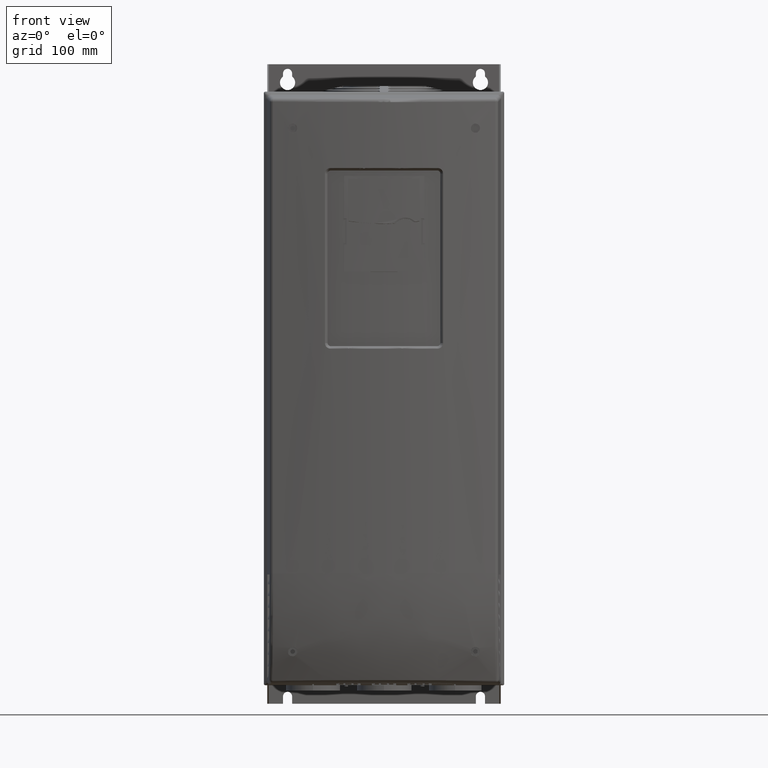
[diagram: clean part render]
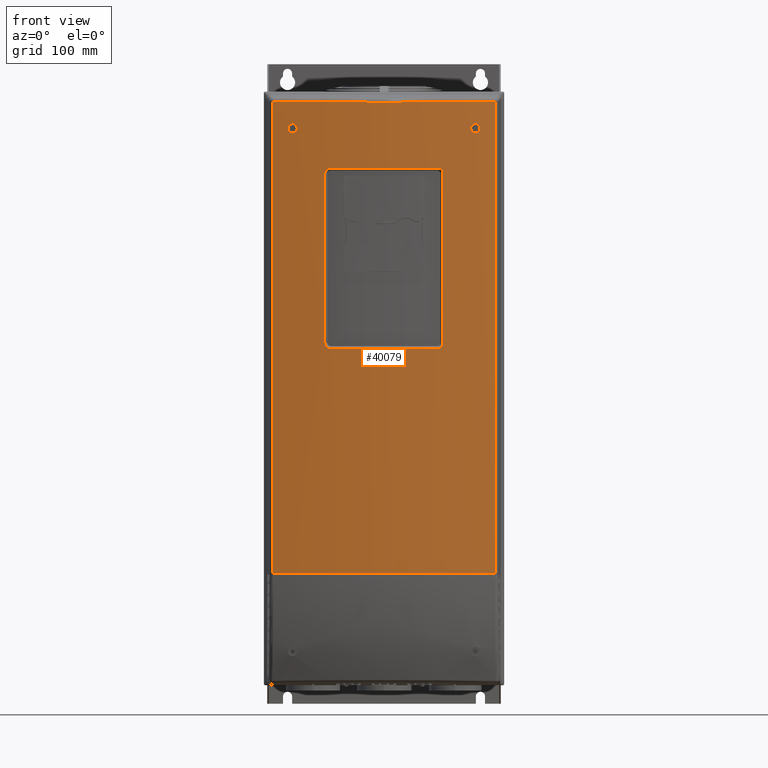
[diagram: same view with one face highlighted and labeled with its STEP entity id]
A machine part, front view. The second image highlights one B-rep face of the part: STEP entity #40079.
In plain terms, the highlighted cylindrical surface (partial cylindrical patch) has radius 603.413 mm, axis along (0, -0, 1).
Its self-contained STEP definition (entity closure, byte-faithful):
#4844=DIRECTION('',(-4.389992715973E-8,-8.793480433944E-6,9.999999999613E-1));
#4845=VECTOR('',#4844,4.647737114025E2);
#4846=CARTESIAN_POINT('',(1.092977528199E2,-2.473051317637E2,
-1.856935594504E2));
#4847=LINE('',#4846,#4845);
#4851=CARTESIAN_POINT('',(-1.092975210104E2,-2.473091599403E2,
2.790800603188E2));
#4852=CARTESIAN_POINT('',(-1.006284729163E2,-2.489058262606E2,
2.789968522384E2));
#4853=CARTESIAN_POINT('',(-8.322019850874E1,-2.517191221845E2,
2.788503518165E2));
#4854=CARTESIAN_POINT('',(-5.694815160586E1,-2.547912949518E2,
2.786902505499E2));
#4855=CARTESIAN_POINT('',(-3.936065229045E1,-2.560695588788E2,
2.786234123004E2));
#4856=CARTESIAN_POINT('',(-3.055716062256E1,-2.565159603670E2,
2.785939506061E2));
#4861=CARTESIAN_POINT('',(3.670140007806E1,-2.561730721327E2,2.786090163866E2));
#4862=CARTESIAN_POINT('',(4.481742642531E1,-2.556785302649E2,2.786436885499E2));
#4863=CARTESIAN_POINT('',(6.102955256126E1,-2.543617418444E2,2.787125647380E2));
#4864=CARTESIAN_POINT('',(8.524820874934E1,-2.514046412708E2,2.788666502539E2));
#4865=CARTESIAN_POINT('',(1.013010445099E2,-2.487820251941E2,2.790033901024E2));
#4866=CARTESIAN_POINT('',(1.092977324164E2,-2.473092187422E2,2.790801519341E2));
#4871=DIRECTION('',(7.418631215392E-8,9.303518604906E-6,-9.999999999567E-1));
#4872=VECTOR('',#4871,4.647736118861E2);
#4873=CARTESIAN_POINT('',(-1.092975210104E2,-2.473091599403E2,
2.790800603188E2));
#4874=LINE('',#4873,#4872);
#4903=CARTESIAN_POINT('',(8.848588079722E-4,3.461277636318E2,
-1.856874586016E2));
#4904=DIRECTION('',(3.971693170988E-7,-1.021186097279E-5,9.999999999478E-1));
#4905=DIRECTION('',(-6.417258386945E-10,-9.999999999479E-1,-1.021186097252E-5));
#4906=AXIS2_PLACEMENT_3D('',#4903,#4904,#4905);
#4920=CARTESIAN_POINT('',(8.848587906765E-4,3.461277636322E2,
-1.856875021490E2));
#4921=DIRECTION('',(3.971693170988E-7,-1.021186097279E-5,9.999999999478E-1));
#4922=DIRECTION('',(-1.811336002445E-1,-9.834584987497E-1,-9.971000753956E-6));
#4923=AXIS2_PLACEMENT_3D('',#4920,#4921,#4922);
#18087=CARTESIAN_POINT('',(3.670140007806E1,-2.561730721327E2,
2.786090163866E2));
#18088=CARTESIAN_POINT('',(3.343711093221E1,-2.563719722043E2,
2.785986906604E2));
#18089=CARTESIAN_POINT('',(2.690530638234E1,-2.567171417619E2,
2.785733863109E2));
#18090=CARTESIAN_POINT('',(1.710042222492E1,-2.570748951438E2,
2.785912465184E2));
#18091=CARTESIAN_POINT('',(1.056082033357E1,-2.572066185871E2,
2.785689246119E2));
#18092=CARTESIAN_POINT('',(7.290691352029E0,-2.572461276095E2,
2.785668734226E2));
#18097=CARTESIAN_POINT('',(1.069246435887E-3,3.461230227297E2,
2.785670040848E2));
#18098=DIRECTION('',(-3.971693170988E-7,1.021186097279E-5,-9.999999999478E-1));
#18099=DIRECTION('',(1.208064810482E-2,-9.999270262559E-1,-1.021591383833E-5));
#18100=AXIS2_PLACEMENT_3D('',#18097,#18098,#18099);
#18105=CARTESIAN_POINT('',(1.069246139473E-3,3.461230227374E2,
2.785662577674E2));
#18106=DIRECTION('',(-3.971693170988E-7,1.021186097279E-5,-9.999999999478E-1));
#18107=DIRECTION('',(2.955594290623E-3,-9.999956321695E-1,-1.021299024101E-5));
#18108=AXIS2_PLACEMENT_3D('',#18105,#18106,#18107);
#18113=CARTESIAN_POINT('',(1.069246133248E-3,3.461230227375E2,
2.785662420958E2));
#18114=DIRECTION('',(-3.971693170988E-7,1.021186097279E-5,-9.999999999478E-1));
#18115=DIRECTION('',(-6.339556613376E-11,-9.999999999479E-1,
-1.021186097280E-5));
#18116=AXIS2_PLACEMENT_3D('',#18113,#18114,#18115);
#18121=CARTESIAN_POINT('',(1.069246337228E-3,3.461230227323E2,
2.785667556786E2));
#18122=DIRECTION('',(-3.971693170988E-7,1.021186097279E-5,-9.999999999478E-1));
#18123=DIRECTION('',(-2.625675796500E-3,-9.999965528552E-1,-1.021078293365E-5));
#18124=AXIS2_PLACEMENT_3D('',#18121,#18122,#18123);
#18129=CARTESIAN_POINT('',(-6.012059037738E0,-2.572602096279E2,
2.785647563235E2));
#18130=CARTESIAN_POINT('',(-8.740606673955E0,-2.572330213517E2,
2.785661676336E2));
#18131=CARTESIAN_POINT('',(-1.419732583413E1,-2.571420681152E2,
2.785816353886E2));
#18132=CARTESIAN_POINT('',(-2.237979188634E1,-2.568939175025E2,
2.785692833654E2));
#18133=CARTESIAN_POINT('',(-2.783199290507E1,-2.566541377983E2,
2.785867774727E2));
#18134=CARTESIAN_POINT('',(-3.055716062256E1,-2.565159603670E2,
2.785939506061E2));
#20240=CARTESIAN_POINT('',(-8.550000951570E1,-2.512019472204E2,
2.527996934139E2));
#20241=CARTESIAN_POINT('',(-8.550000950824E1,-2.512019425277E2,
2.523374876782E2));
#20242=CARTESIAN_POINT('',(-8.564269065620E1,-2.511816037366E2,
2.514069904896E2));
#20243=CARTESIAN_POINT('',(-8.629065366590E1,-2.510884034599E2,
2.501212347959E2));
#20244=CARTESIAN_POINT('',(-8.730226270554E1,-2.509414547887E2,
2.491036545090E2));
#20245=CARTESIAN_POINT('',(-8.859266518613E1,-2.507520125536E2,
2.484460911163E2));
#20246=CARTESIAN_POINT('',(-8.953929263400E1,-2.506088958049E2,
2.482968399316E2));
#20247=CARTESIAN_POINT('',(-9.001253699779E1,-2.505375011064E2,
2.482981411789E2));
#20252=CARTESIAN_POINT('',(-9.001253699779E1,-2.505375011064E2,
2.482981411789E2));
#20253=CARTESIAN_POINT('',(-9.048335284553E1,-2.504664727792E2,
2.482994357487E2));
#20254=CARTESIAN_POINT('',(-9.142468091186E1,-2.503248278448E2,
2.484536777911E2));
#20255=CARTESIAN_POINT('',(-9.269733566365E1,-2.501276748404E2,
2.491039136461E2));
#20256=CARTESIAN_POINT('',(-9.371611144703E1,-2.499685849356E2,
2.501290383586E2));
#20257=CARTESIAN_POINT('',(-9.435979201305E1,-2.498653093591E2,
2.514159662906E2));
#20258=CARTESIAN_POINT('',(-9.449928364846E1,-2.498477190082E2,
2.523413487999E2));
#20259=CARTESIAN_POINT('',(-9.449928364846E1,-2.498477236599E2,
2.527996938326E2));
#20303=CARTESIAN_POINT('',(-9.449928364846E1,-2.498477236599E2,
2.527996938326E2));
#20304=CARTESIAN_POINT('',(-9.449928364846E1,-2.498477283548E2,
2.532622922977E2));
#20305=CARTESIAN_POINT('',(-9.435689680403E1,-2.498657672987E2,
2.541942893780E2));
#20306=CARTESIAN_POINT('',(-9.370852769071E1,-2.499698373109E2,
2.554812910659E2));
#20307=CARTESIAN_POINT('',(-9.268412868456E1,-2.501298601800E2,
2.565052168306E2));
#20308=CARTESIAN_POINT('',(-9.140960358678E1,-2.503269104706E2,
2.571507542819E2));
#20309=CARTESIAN_POINT('',(-9.046410788297E1,-2.504703015868E2,
2.573022758245E2));
#20310=CARTESIAN_POINT('',(-8.999090913020E1,-2.505416717641E2,
2.573013161094E2));
#20315=CARTESIAN_POINT('',(-8.999090913020E1,-2.505416717641E2,
2.573013161094E2));
#20316=CARTESIAN_POINT('',(-8.952261853191E1,-2.506123016693E2,
2.573003663487E2));
#20317=CARTESIAN_POINT('',(-8.858441097382E1,-2.507529545425E2,
2.571496506375E2));
#20318=CARTESIAN_POINT('',(-8.729926805230E1,-2.509420458269E2,
2.564932747827E2));
#20319=CARTESIAN_POINT('',(-8.628984721831E1,-2.510885769866E2,
2.554762696466E2));
#20320=CARTESIAN_POINT('',(-8.564397476502E1,-2.511814554840E2,
2.541955415647E2));
#20321=CARTESIAN_POINT('',(-8.550000952319E1,-2.512019519290E2,
2.532634741845E2));
#20322=CARTESIAN_POINT('',(-8.550000951570E1,-2.512019472204E2,
2.527996934139E2));
#20487=CARTESIAN_POINT('',(8.550025778987E1,-2.512025624851E2,
2.527996939753E2));
#20488=CARTESIAN_POINT('',(8.550025778987E1,-2.512025672466E2,
2.532633787030E2));
#20489=CARTESIAN_POINT('',(8.564404680980E1,-2.511815890839E2,
2.541973795104E2));
#20490=CARTESIAN_POINT('',(8.629425831353E1,-2.510882699504E2,
2.554856460002E2));
#20491=CARTESIAN_POINT('',(8.732214835898E1,-2.509389778943E2,
2.565100629594E2));
#20492=CARTESIAN_POINT('',(8.859967022499E1,-2.507510463438E2,
2.571539339836E2));
#20493=CARTESIAN_POINT('',(8.954660820951E1,-2.506090185295E2,
2.573034111348E2));
#20494=CARTESIAN_POINT('',(9.002028167277E1,-2.505375545871E2,
2.573012811944E2));
#20499=CARTESIAN_POINT('',(9.002028167277E1,-2.505375545871E2,
2.573012811944E2));
#20500=CARTESIAN_POINT('',(9.049061289459E1,-2.504665948945E2,
2.572991662829E2));
#20501=CARTESIAN_POINT('',(9.143053144312E1,-2.503240211928E2,
2.571435893312E2));
#20502=CARTESIAN_POINT('',(9.270106604527E1,-2.501275726964E2,
2.564925425428E2));
#20503=CARTESIAN_POINT('',(9.371781748851E1,-2.499686027855E2,
2.554677491578E2));
#20504=CARTESIAN_POINT('',(9.436015039964E1,-2.498661112876E2,
2.541815613297E2));
#20505=CARTESIAN_POINT('',(9.449945538890E1,-2.498467573993E2,
2.532573752532E2));
#20506=CARTESIAN_POINT('',(9.449945510542E1,-2.498467527416E2,
2.527996909298E2));
#20518=CARTESIAN_POINT('',(8.998361142605E1,-2.505424582071E2,
2.482981566304E2));
#20519=CARTESIAN_POINT('',(8.951316251695E1,-2.506134061365E2,
2.482998817953E2));
#20520=CARTESIAN_POINT('',(8.857293926786E1,-2.507551213406E2,
2.484546274891E2));
#20521=CARTESIAN_POINT('',(8.730164739859E1,-2.509418633394E2,
2.491047049911E2));
#20522=CARTESIAN_POINT('',(8.628302840476E1,-2.510898353390E2,
2.501302688724E2));
#20523=CARTESIAN_POINT('',(8.564052954591E1,-2.511820692101E2,
2.514160103070E2));
#20524=CARTESIAN_POINT('',(8.550025778987E1,-2.512025577781E2,
2.523413118035E2));
#20525=CARTESIAN_POINT('',(8.550025778987E1,-2.512025624851E2,
2.527996939753E2));
#20537=CARTESIAN_POINT('',(9.449945510542E1,-2.498467527416E2,
2.527996909298E2));
#20538=CARTESIAN_POINT('',(9.449945481873E1,-2.498467480311E2,
2.523368233212E2));
#20539=CARTESIAN_POINT('',(9.435671869484E1,-2.498666065798E2,
2.514041540481E2));
#20540=CARTESIAN_POINT('',(9.370688952198E1,-2.499702858771E2,
2.501155706460E2));
#20541=CARTESIAN_POINT('',(9.268127203188E1,-2.501305396324E2,
2.490919746094E2));
#20542=CARTESIAN_POINT('',(9.140435428280E1,-2.503281622929E2,
2.484466681841E2));
#20543=CARTESIAN_POINT('',(9.045738965808E1,-2.504710081858E2,
2.482964192566E2));
#20544=CARTESIAN_POINT('',(8.998361142605E1,-2.505424582071E2,
2.482981566304E2));
#20741=DIRECTION('',(-1.462406791985E-6,-8.748933102521E-6,9.999999999607E-1));
#20742=VECTOR('',#20741,1.670000008443E2);
#20743=CARTESIAN_POINT('',(-5.824098406566E1,-2.544708420957E2,
4.123718358108E1));
#20744=LINE('',#20743,#20742);
#20780=CARTESIAN_POINT('',(-5.824122828760E1,-2.544723031676E2,
2.082371844188E2));
#20781=CARTESIAN_POINT('',(-5.824170748290E1,-2.544722624745E2,
2.088049838379E2));
#20782=CARTESIAN_POINT('',(-5.807097050381E1,-2.544890176804E2,
2.098952949673E2));
#20783=CARTESIAN_POINT('',(-5.727046694691E1,-2.545660576913E2,
2.115132430385E2));
#20784=CARTESIAN_POINT('',(-5.602374627114E1,-2.546839446269E2,
2.127586364054E2));
#20785=CARTESIAN_POINT('',(-5.441318500435E1,-2.548321902383E2,
2.135596462999E2));
#20786=CARTESIAN_POINT('',(-5.330107762004E1,-2.549312064093E2,
2.137368339443E2));
#20787=CARTESIAN_POINT('',(-5.271829364144E1,-2.549823180310E2,
2.137371676796E2));
#20805=CARTESIAN_POINT('',(2.011350294686E-3,3.461644406132E2,
2.136939368535E2));
#20806=DIRECTION('',(3.119172881507E-6,7.186076741732E-5,9.999999974132E-1));
#20807=DIRECTION('',(-1.603742353780E-6,-9.999999974167E-1,7.186077241993E-5));
#20808=AXIS2_PLACEMENT_3D('',#20805,#20806,#20807);
#20826=CARTESIAN_POINT('',(2.011349785434E-3,3.461644406015E2,
2.136937735883E2));
#20827=DIRECTION('',(3.119172881507E-6,7.186076741732E-5,9.999999974132E-1));
#20828=DIRECTION('',(-8.736406903989E-2,-9.961764473612E-1,7.185850781127E-5));
#20829=AXIS2_PLACEMENT_3D('',#20826,#20827,#20828);
#20834=CARTESIAN_POINT('',(5.271817192700E1,-2.549825149701E2,
2.137370770600E2));
#20835=CARTESIAN_POINT('',(5.330627586916E1,-2.549309385E2,2.137327073567E2));
#20836=CARTESIAN_POINT('',(5.442449925086E1,-2.548313479086E2,
2.135565507133E2));
#20837=CARTESIAN_POINT('',(5.602786713812E1,-2.546837637581E2,
2.127525905200E2));
#20838=CARTESIAN_POINT('',(5.726485839542E1,-2.545667223303E2,
2.115195856154E2));
#20839=CARTESIAN_POINT('',(5.806743240577E1,-2.544898121234E2,
2.099112614877E2));
#20840=CARTESIAN_POINT('',(5.823981322452E1,-2.544721115428E2,
2.088121190099E2));
#20841=CARTESIAN_POINT('',(5.824152087208E1,-2.544719400571E2,
2.082372090627E2));
#20870=DIRECTION('',(1.454223642217E-6,8.961100098287E-6,-9.999999999588E-1));
#20871=VECTOR('',#20870,1.669999992749E2);
#20872=CARTESIAN_POINT('',(5.824152087208E1,-2.544719400571E2,
2.082372090627E2));
#20873=LINE('',#20872,#20871);
#20895=CARTESIAN_POINT('',(5.824176372743E1,-2.544704435534E2,
4.123720979467E1));
#20896=CARTESIAN_POINT('',(5.824198132895E1,-2.544704166354E2,
4.066973093162E1));
#20897=CARTESIAN_POINT('',(5.807256162231E1,-2.544874624362E2,
3.957990079268E1));
#20898=CARTESIAN_POINT('',(5.726533273793E1,-2.545649208849E2,
3.795399996635E1));
#20899=CARTESIAN_POINT('',(5.602431454347E1,-2.546823223553E2,
3.671654714476E1));
#20900=CARTESIAN_POINT('',(5.440448867620E1,-2.548312421375E2,
3.591225237589E1));
#20901=CARTESIAN_POINT('',(5.329771388057E1,-2.549300881962E2,
3.573712293213E1));
#20902=CARTESIAN_POINT('',(5.271876337039E1,-2.549808628854E2,
3.573716994146E1));
#20927=CARTESIAN_POINT('',(2.815339262316E-4,3.461227461568E2,
3.573709213478E1));
#20928=DIRECTION('',(1.789551281016E-9,-1.219942401519E-7,-1.E0));
#20929=DIRECTION('',(1.145637190984E-6,-9.999999999993E-1,1.219942422057E-7));
#20930=AXIS2_PLACEMENT_3D('',#20927,#20928,#20929);
#20957=CARTESIAN_POINT('',(2.815339262318E-4,3.461227461568E2,
3.573709203166E1));
#20958=DIRECTION('',(1.789551281016E-9,-1.219942401519E-7,-1.E0));
#20959=DIRECTION('',(8.736744916499E-2,-9.961761535122E-1,1.216841014382E-7));
#20960=AXIS2_PLACEMENT_3D('',#20957,#20958,#20959);
#20965=CARTESIAN_POINT('',(-5.271807354450E1,-2.549808336040E2,
3.573717990692E1));
#20966=CARTESIAN_POINT('',(-5.330131735104E1,-2.549296822343E2,
3.573816803043E1));
#20967=CARTESIAN_POINT('',(-5.441482418900E1,-2.548300980852E2,
3.591486166830E1));
#20968=CARTESIAN_POINT('',(-5.603167220579E1,-2.546814486944E2,
3.672065520969E1));
#20969=CARTESIAN_POINT('',(-5.727825200283E1,-2.545635644630E2,
3.797273114235E1));
#20970=CARTESIAN_POINT('',(-5.807558138290E1,-2.544867413627E2,
3.959842187194E1));
#20971=CARTESIAN_POINT('',(-5.824145481687E1,-2.544707907524E2,
4.067760172722E1));
#20972=CARTESIAN_POINT('',(-5.824098406566E1,-2.544708420957E2,
4.123718358108E1));
#34251=CARTESIAN_POINT('',(1.092980612679E2,-2.473052876142E2,
-1.856935250561E2));
#34253=VERTEX_POINT('',#34251);
#34255=CARTESIAN_POINT('',(1.092977324164E2,-2.473092187422E2,
2.790801519341E2));
#34256=VERTEX_POINT('',#34255);
#34259=CARTESIAN_POINT('',(-1.092975210104E2,-2.473091599403E2,
2.790800603188E2));
#34260=CARTESIAN_POINT('',(-1.092974865305E2,-2.473048359104E2,
-1.856935515472E2));
#34261=VERTEX_POINT('',#34259);
#34262=VERTEX_POINT('',#34260);
#34263=VERTEX_POINT('',#4856);
#34264=VERTEX_POINT('',#18129);
#34265=CARTESIAN_POINT('',(-1.583299050661E0,-2.572884256893E2,
2.785605943540E2));
#34266=VERTEX_POINT('',#34265);
#34267=CARTESIAN_POINT('',(1.069207879506E-3,-2.572905057064E2,
2.785600801207E2));
#34268=VERTEX_POINT('',#34267);
#34269=CARTESIAN_POINT('',(1.784514825786E0,-2.572878701300E2,
2.785600951109E2));
#34270=VERTEX_POINT('',#34269);
#34271=CARTESIAN_POINT('',(7.290695745632E0,-2.572464724013E2,
2.785608396642E2));
#34272=VERTEX_POINT('',#34271);
#34273=VERTEX_POINT('',#18087);
#34274=CARTESIAN_POINT('',(8.844715819195E-4,-2.572857648122E2,
-1.856936205767E2));
#34275=VERTEX_POINT('',#34274);
#34276=VERTEX_POINT('',#20240);
#34277=VERTEX_POINT('',#20247);
#34278=VERTEX_POINT('',#20315);
#34279=VERTEX_POINT('',#20303);
#34280=VERTEX_POINT('',#20487);
#34281=VERTEX_POINT('',#20494);
#34282=VERTEX_POINT('',#20518);
#34283=VERTEX_POINT('',#20537);
#34284=CARTESIAN_POINT('',(-5.824098406566E1,-2.544708420957E2,
4.123718358108E1));
#34285=CARTESIAN_POINT('',(-5.824122828760E1,-2.544723031676E2,
2.082371844188E2));
#34286=VERTEX_POINT('',#34284);
#34287=VERTEX_POINT('',#34285);
#34288=VERTEX_POINT('',#20965);
#34289=CARTESIAN_POINT('',(9.728241800381E-4,-2.572884028934E2,
3.573716574746E1));
#34290=VERTEX_POINT('',#34289);
#34291=CARTESIAN_POINT('',(5.271877442371E1,-2.549810512853E2,
3.573716545720E1));
#34292=VERTEX_POINT('',#34291);
#34293=VERTEX_POINT('',#20895);
#34294=CARTESIAN_POINT('',(5.824152087208E1,-2.544719400571E2,
2.082372090627E2));
#34295=VERTEX_POINT('',#34294);
#34296=VERTEX_POINT('',#20834);
#34297=CARTESIAN_POINT('',(1.043565456973E-3,-2.572896197799E2,
2.137373015285E2));
#34298=VERTEX_POINT('',#34297);
#34299=CARTESIAN_POINT('',(-5.271819082619E1,-2.549822812143E2,
2.137371368966E2));
#34300=VERTEX_POINT('',#34299);
#40007=CARTESIAN_POINT('',(8.986782506779E-4,3.461274083117E2,
-1.508926189449E2));
#40008=DIRECTION('',(3.971693170988E-7,-1.021186097279E-5,9.999999999478E-1));
#40009=DIRECTION('',(6.275284658271E-11,9.999999999479E-1,1.021186097277E-5));
#40010=AXIS2_PLACEMENT_3D('',#40007,#40008,#40009);
#40011=CYLINDRICAL_SURFACE('',#40010,6.034135284754E2);
#40013=ORIENTED_EDGE('',*,*,#40012,.F.);
#40015=ORIENTED_EDGE('',*,*,#40014,.T.);
#40017=ORIENTED_EDGE('',*,*,#40016,.F.);
#40019=ORIENTED_EDGE('',*,*,#40018,.F.);
#40021=ORIENTED_EDGE('',*,*,#40020,.F.);
#40023=ORIENTED_EDGE('',*,*,#40022,.F.);
#40025=ORIENTED_EDGE('',*,*,#40024,.F.);
#40027=ORIENTED_EDGE('',*,*,#40026,.F.);
#40029=ORIENTED_EDGE('',*,*,#40028,.T.);
#40030=ORIENTED_EDGE('',*,*,#39998,.F.);
#40032=ORIENTED_EDGE('',*,*,#40031,.F.);
#40034=ORIENTED_EDGE('',*,*,#40033,.F.);
#40035=EDGE_LOOP('',(#40013,#40015,#40017,#40019,#40021,#40023,#40025,#40027,
#40029,#40030,#40032,#40034));
#40036=FACE_OUTER_BOUND('',#40035,.F.);
#40038=ORIENTED_EDGE('',*,*,#40037,.F.);
#40040=ORIENTED_EDGE('',*,*,#40039,.F.);
#40042=ORIENTED_EDGE('',*,*,#40041,.F.);
#40044=ORIENTED_EDGE('',*,*,#40043,.F.);
#40045=EDGE_LOOP('',(#40038,#40040,#40042,#40044));
#40046=FACE_BOUND('',#40045,.F.);
#40048=ORIENTED_EDGE('',*,*,#40047,.F.);
#40050=ORIENTED_EDGE('',*,*,#40049,.F.);
#40052=ORIENTED_EDGE('',*,*,#40051,.F.);
#40054=ORIENTED_EDGE('',*,*,#40053,.F.);
#40055=EDGE_LOOP('',(#40048,#40050,#40052,#40054));
#40056=FACE_BOUND('',#40055,.F.);
#40058=ORIENTED_EDGE('',*,*,#40057,.F.);
#40060=ORIENTED_EDGE('',*,*,#40059,.F.);
#40062=ORIENTED_EDGE('',*,*,#40061,.F.);
#40064=ORIENTED_EDGE('',*,*,#40063,.F.);
#40066=ORIENTED_EDGE('',*,*,#40065,.F.);
#40068=ORIENTED_EDGE('',*,*,#40067,.F.);
#40070=ORIENTED_EDGE('',*,*,#40069,.F.);
#40072=ORIENTED_EDGE('',*,*,#40071,.F.);
#40074=ORIENTED_EDGE('',*,*,#40073,.F.);
#40076=ORIENTED_EDGE('',*,*,#40075,.F.);
#40077=EDGE_LOOP('',(#40058,#40060,#40062,#40064,#40066,#40068,#40070,#40072,
#40074,#40076));
#40078=FACE_BOUND('',#40077,.F.);
#40079=ADVANCED_FACE('',(#40036,#40046,#40056,#40078),#40011,.T.);
#4857=B_SPLINE_CURVE_WITH_KNOTS('',3,(#4851,#4852,#4853,#4854,#4855,#4856),
.UNSPECIFIED.,.F.,.F.,(4,1,1,4),(0.E0,3.333333333333E-1,6.666666666667E-1,1.E0),
.UNSPECIFIED.);
#4867=B_SPLINE_CURVE_WITH_KNOTS('',3,(#4861,#4862,#4863,#4864,#4865,#4866),
.UNSPECIFIED.,.F.,.F.,(4,1,1,4),(0.E0,3.333333333333E-1,6.666666666667E-1,1.E0),
.UNSPECIFIED.);
#4907=CIRCLE('',#4906,6.034135284754E2);
#4924=CIRCLE('',#4923,6.034135284754E2);
#18093=B_SPLINE_CURVE_WITH_KNOTS('',3,(#18087,#18088,#18089,#18090,#18091,
#18092),.UNSPECIFIED.,.F.,.F.,(4,1,1,4),(0.E0,3.333333333333E-1,
6.666666666667E-1,1.E0),.UNSPECIFIED.);
#18101=CIRCLE('',#18100,6.034135284754E2);
#18109=CIRCLE('',#18108,6.034135284754E2);
#18117=CIRCLE('',#18116,6.034135284754E2);
#18125=CIRCLE('',#18124,6.034135284754E2);
#18135=B_SPLINE_CURVE_WITH_KNOTS('',3,(#18129,#18130,#18131,#18132,#18133,
#18134),.UNSPECIFIED.,.F.,.F.,(4,1,1,4),(0.E0,3.333333333333E-1,
6.666666666667E-1,1.E0),.UNSPECIFIED.);
#20248=B_SPLINE_CURVE_WITH_KNOTS('',3,(#20240,#20241,#20242,#20243,#20244,
#20245,#20246,#20247),.UNSPECIFIED.,.F.,.F.,(4,1,1,1,1,4),(0.E0,2.E-1,4.E-1,
6.E-1,8.E-1,1.E0),.UNSPECIFIED.);
#20260=B_SPLINE_CURVE_WITH_KNOTS('',3,(#20252,#20253,#20254,#20255,#20256,
#20257,#20258,#20259),.UNSPECIFIED.,.F.,.F.,(4,1,1,1,1,4),(0.E0,2.E-1,4.E-1,
6.E-1,8.E-1,1.E0),.UNSPECIFIED.);
#20311=B_SPLINE_CURVE_WITH_KNOTS('',3,(#20303,#20304,#20305,#20306,#20307,
#20308,#20309,#20310),.UNSPECIFIED.,.F.,.F.,(4,1,1,1,1,4),(0.E0,2.E-1,4.E-1,
6.E-1,8.E-1,1.E0),.UNSPECIFIED.);
#20323=B_SPLINE_CURVE_WITH_KNOTS('',3,(#20315,#20316,#20317,#20318,#20319,
#20320,#20321,#20322),.UNSPECIFIED.,.F.,.F.,(4,1,1,1,1,4),(0.E0,2.E-1,4.E-1,
6.E-1,8.E-1,1.E0),.UNSPECIFIED.);
#20495=B_SPLINE_CURVE_WITH_KNOTS('',3,(#20487,#20488,#20489,#20490,#20491,
#20492,#20493,#20494),.UNSPECIFIED.,.F.,.F.,(4,1,1,1,1,4),(0.E0,2.E-1,4.E-1,
6.E-1,8.E-1,1.E0),.UNSPECIFIED.);
#20507=B_SPLINE_CURVE_WITH_KNOTS('',3,(#20499,#20500,#20501,#20502,#20503,
#20504,#20505,#20506),.UNSPECIFIED.,.F.,.F.,(4,1,1,1,1,4),(0.E0,2.E-1,4.E-1,
6.E-1,8.E-1,1.E0),.UNSPECIFIED.);
#20526=B_SPLINE_CURVE_WITH_KNOTS('',3,(#20518,#20519,#20520,#20521,#20522,
#20523,#20524,#20525),.UNSPECIFIED.,.F.,.F.,(4,1,1,1,1,4),(0.E0,2.E-1,4.E-1,
6.E-1,8.E-1,1.E0),.UNSPECIFIED.);
#20545=B_SPLINE_CURVE_WITH_KNOTS('',3,(#20537,#20538,#20539,#20540,#20541,
#20542,#20543,#20544),.UNSPECIFIED.,.F.,.F.,(4,1,1,1,1,4),(0.E0,2.E-1,4.E-1,
6.E-1,8.E-1,1.E0),.UNSPECIFIED.);
#20788=B_SPLINE_CURVE_WITH_KNOTS('',3,(#20780,#20781,#20782,#20783,#20784,
#20785,#20786,#20787),.UNSPECIFIED.,.F.,.F.,(4,1,1,1,1,4),(0.E0,2.E-1,4.E-1,
6.E-1,8.E-1,1.E0),.UNSPECIFIED.);
#20809=CIRCLE('',#20808,6.034540619520E2);
#20830=CIRCLE('',#20829,6.034540601800E2);
#20842=B_SPLINE_CURVE_WITH_KNOTS('',3,(#20834,#20835,#20836,#20837,#20838,
#20839,#20840,#20841),.UNSPECIFIED.,.F.,.F.,(4,1,1,1,1,4),(0.E0,2.E-1,4.E-1,
6.E-1,8.E-1,1.E0),.UNSPECIFIED.);
#20903=B_SPLINE_CURVE_WITH_KNOTS('',3,(#20895,#20896,#20897,#20898,#20899,
#20900,#20901,#20902),.UNSPECIFIED.,.F.,.F.,(4,1,1,1,1,4),(0.E0,2.E-1,4.E-1,
6.E-1,8.E-1,1.E0),.UNSPECIFIED.);
#20931=CIRCLE('',#20930,6.034111490506E2);
#20961=CIRCLE('',#20960,6.034111490451E2);
#20973=B_SPLINE_CURVE_WITH_KNOTS('',3,(#20965,#20966,#20967,#20968,#20969,
#20970,#20971,#20972),.UNSPECIFIED.,.F.,.F.,(4,1,1,1,1,4),(0.E0,2.E-1,4.E-1,
6.E-1,8.E-1,1.E0),.UNSPECIFIED.);
#39998=EDGE_CURVE('',#34253,#34256,#4847,.T.);
#40012=EDGE_CURVE('',#34261,#34262,#4874,.T.);
#40014=EDGE_CURVE('',#34261,#34263,#4857,.T.);
#40016=EDGE_CURVE('',#34264,#34263,#18135,.T.);
#40018=EDGE_CURVE('',#34266,#34264,#18125,.T.);
#40020=EDGE_CURVE('',#34268,#34266,#18117,.T.);
#40022=EDGE_CURVE('',#34270,#34268,#18109,.T.);
#40024=EDGE_CURVE('',#34272,#34270,#18101,.T.);
#40026=EDGE_CURVE('',#34273,#34272,#18093,.T.);
#40028=EDGE_CURVE('',#34273,#34256,#4867,.T.);
#40031=EDGE_CURVE('',#34275,#34253,#4907,.T.);
#40033=EDGE_CURVE('',#34262,#34275,#4924,.T.);
#40037=EDGE_CURVE('',#34276,#34277,#20248,.T.);
#40039=EDGE_CURVE('',#34278,#34276,#20323,.T.);
#40041=EDGE_CURVE('',#34279,#34278,#20311,.T.);
#40043=EDGE_CURVE('',#34277,#34279,#20260,.T.);
#40047=EDGE_CURVE('',#34280,#34281,#20495,.T.);
#40049=EDGE_CURVE('',#34282,#34280,#20526,.T.);
#40051=EDGE_CURVE('',#34283,#34282,#20545,.T.);
#40053=EDGE_CURVE('',#34281,#34283,#20507,.T.);
#40057=EDGE_CURVE('',#34286,#34287,#20744,.T.);
#40059=EDGE_CURVE('',#34288,#34286,#20973,.T.);
#40061=EDGE_CURVE('',#34290,#34288,#20931,.T.);
#40063=EDGE_CURVE('',#34292,#34290,#20961,.T.);
#40065=EDGE_CURVE('',#34293,#34292,#20903,.T.);
#40067=EDGE_CURVE('',#34295,#34293,#20873,.T.);
#40069=EDGE_CURVE('',#34296,#34295,#20842,.T.);
#40071=EDGE_CURVE('',#34298,#34296,#20809,.T.);
#40073=EDGE_CURVE('',#34300,#34298,#20830,.T.);
#40075=EDGE_CURVE('',#34287,#34300,#20788,.T.);